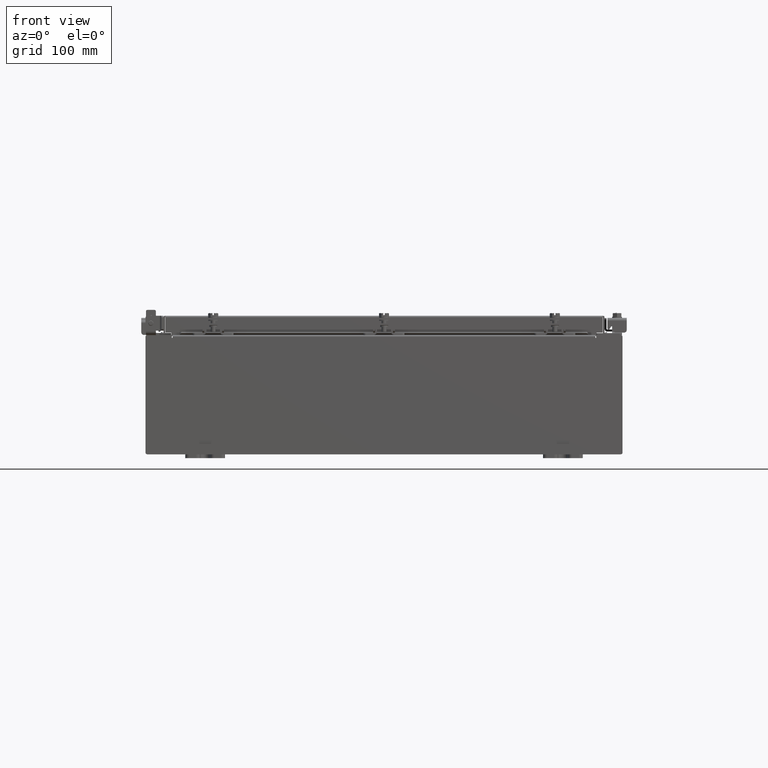
[diagram: clean part render]
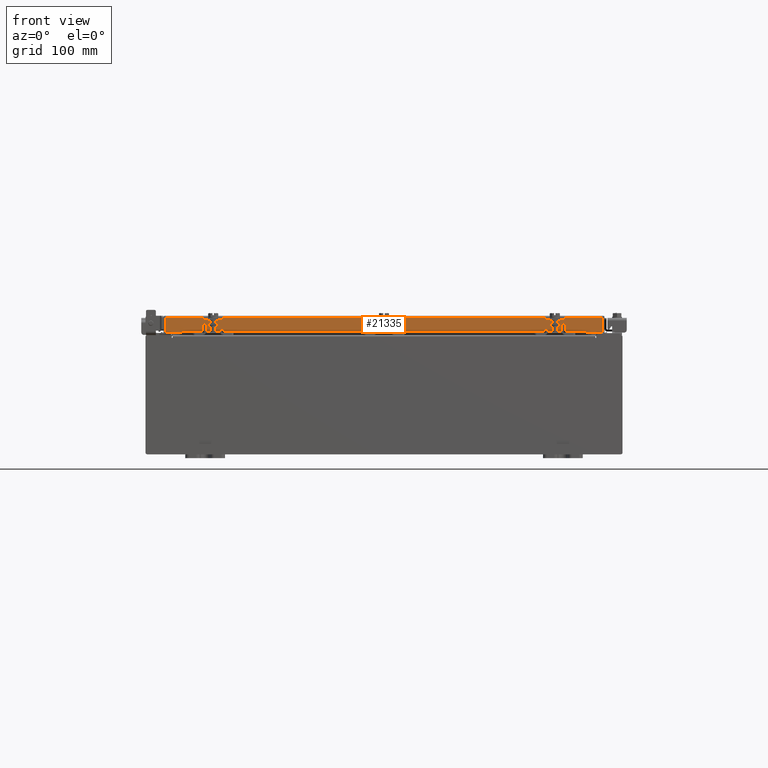
[diagram: same view with one face highlighted and labeled with its STEP entity id]
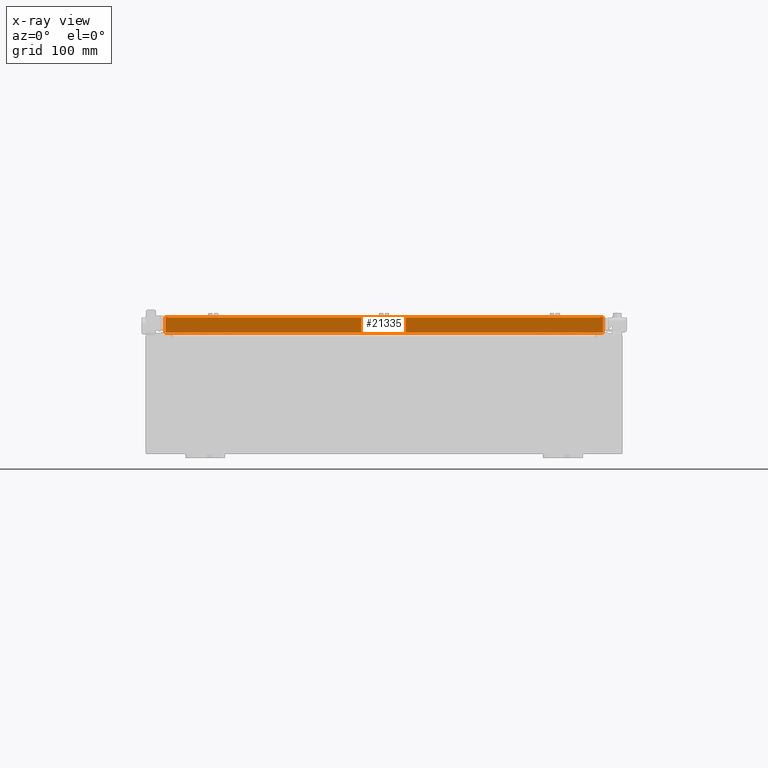
[diagram: x-ray of the same camera — body ghosted, the highlighted face saturated]
A machine part, front view. The second image highlights one B-rep face of the part: STEP entity #21335.
The next image is the same camera in x-ray: the body ghosted, the highlighted face saturated — about 0% of this face is hidden behind the body in this view.
In plain terms, the highlighted planar face has unit normal (-0, 1, -0).
Its self-contained STEP definition (entity closure, byte-faithful):
#287 = EDGE_LOOP ( 'NONE', ( #15582, #2360, #13617, #20908, #10682, #13291 ) ) ;
#482 = EDGE_CURVE ( 'NONE', #17370, #3004, #20799, .T. ) ;
#660 = DIRECTION ( 'NONE',  ( 0.0000000000000000000, -2.818880942772360100E-015, -1.000000000000000000 ) ) ;
#688 = EDGE_CURVE ( 'NONE', #2400, #17370, #15351, .T. ) ;
#952 = FACE_OUTER_BOUND ( 'NONE', #287, .T. ) ;
#1618 = LINE ( 'NONE', #17030, #2160 ) ;
#1976 = VECTOR ( 'NONE', #11158, 39.37007874015748100 ) ;
#2160 = VECTOR ( 'NONE', #6588, 39.37007874015748100 ) ;
#2360 = ORIENTED_EDGE ( 'NONE', *, *, #14827, .T. ) ;
#2400 = VERTEX_POINT ( 'NONE', #7180 ) ;
#3004 = VERTEX_POINT ( 'NONE', #16664 ) ;
#3189 = DIRECTION ( 'NONE',  ( -3.470684265319587400E-031, 1.000000000000000000, -2.818880942772360100E-015 ) ) ;
#3668 = LINE ( 'NONE', #16390, #7729 ) ;
#4553 = CARTESIAN_POINT ( 'NONE',  ( 11.09399999999999200, -11.09400000000000300, -0.8499999999999999800 ) ) ;
#5743 = VERTEX_POINT ( 'NONE', #10407 ) ;
#6379 = DIRECTION ( 'NONE',  ( -1.000000000000000000, 0.0000000000000000000, 0.0000000000000000000 ) ) ;
#6588 = DIRECTION ( 'NONE',  ( 1.000000000000000000, 3.470684265319588300E-031, -9.460278716967662300E-046 ) ) ;
#6670 = AXIS2_PLACEMENT_3D ( 'NONE', #11836, #3189, #15393 ) ;
#7180 = CARTESIAN_POINT ( 'NONE',  ( 11.00515786437626200, -11.09400000000000300, -0.8499999999999999800 ) ) ;
#7203 = VECTOR ( 'NONE', #15279, 39.37007874015748100 ) ;
#7729 = VECTOR ( 'NONE', #660, 39.37007874015748100 ) ;
#7785 = CARTESIAN_POINT ( 'NONE',  ( 11.09399999999999200, -11.09400000000000300, -0.8499999999999999800 ) ) ;
#8105 = EDGE_CURVE ( 'NONE', #19169, #5743, #1618, .T. ) ;
#8334 = CARTESIAN_POINT ( 'NONE',  ( 11.00515786437626200, -11.09400000000000100, -0.07470000000000015500 ) ) ;
#10176 = PLANE ( 'NONE',  #6670 ) ;
#10292 = EDGE_CURVE ( 'NONE', #3004, #17949, #19883, .T. ) ;
#10407 = CARTESIAN_POINT ( 'NONE',  ( 11.00515786437626200, -11.09400000000000100, -0.08770000000000026400 ) ) ;
#10682 = ORIENTED_EDGE ( 'NONE', *, *, #688, .F. ) ;
#11026 = CARTESIAN_POINT ( 'NONE',  ( 10.25515786437626000, -11.09400000000000100, -0.8500000000000020900 ) ) ;
#11089 = CARTESIAN_POINT ( 'NONE',  ( 10.25515786437626000, -11.09400000000000100, -0.8500000000000020900 ) ) ;
#11158 = DIRECTION ( 'NONE',  ( -1.000000000000000000, 4.379057701015054300E-047, 1.231227687788112800E-016 ) ) ;
#11836 = CARTESIAN_POINT ( 'NONE',  ( 0.0000000000000000000, -11.09400000000000100, 3.168943672650545400E-014 ) ) ;
#12301 = CARTESIAN_POINT ( 'NONE',  ( -11.00515786437626900, -11.09400000000000100, -0.08770000000000026400 ) ) ;
#13291 = ORIENTED_EDGE ( 'NONE', *, *, #14400, .F. ) ;
#13617 = ORIENTED_EDGE ( 'NONE', *, *, #10292, .F. ) ;
#14305 = CARTESIAN_POINT ( 'NONE',  ( -11.00515786437626900, -11.09400000000000300, -0.8499999999999966500 ) ) ;
#14400 = EDGE_CURVE ( 'NONE', #5743, #2400, #21104, .T. ) ;
#14827 = EDGE_CURVE ( 'NONE', #19169, #17949, #3668, .T. ) ;
#15261 = VECTOR ( 'NONE', #16751, 39.37007874015748100 ) ;
#15279 = DIRECTION ( 'NONE',  ( -0.0000000000000000000, -2.818880942772360100E-015, -1.000000000000000000 ) ) ;
#15351 = LINE ( 'NONE', #7785, #1976 ) ;
#15393 = DIRECTION ( 'NONE',  ( 0.0000000000000000000, 2.818880942772360100E-015, 1.000000000000000000 ) ) ;
#15582 = ORIENTED_EDGE ( 'NONE', *, *, #8105, .F. ) ;
#16390 = CARTESIAN_POINT ( 'NONE',  ( -11.00515786437627100, -11.09400000000000100, 3.168943672650545400E-014 ) ) ;
#16664 = CARTESIAN_POINT ( 'NONE',  ( -10.25515786437626900, -11.09400000000000100, -0.8500000000000020900 ) ) ;
#16751 = DIRECTION ( 'NONE',  ( -1.000000000000000000, 4.379057701015054300E-047, 1.231227687788112800E-016 ) ) ;
#17030 = CARTESIAN_POINT ( 'NONE',  ( 11.09399999999999200, -11.09400000000000100, -0.08770000000000026400 ) ) ;
#17370 = VERTEX_POINT ( 'NONE', #11089 ) ;
#17949 = VERTEX_POINT ( 'NONE', #14305 ) ;
#19169 = VERTEX_POINT ( 'NONE', #12301 ) ;
#19883 = LINE ( 'NONE', #4553, #15261 ) ;
#20247 = VECTOR ( 'NONE', #6379, 39.37007874015748100 ) ;
#20799 = LINE ( 'NONE', #11026, #20247 ) ;
#20908 = ORIENTED_EDGE ( 'NONE', *, *, #482, .F. ) ;
#21104 = LINE ( 'NONE', #8334, #7203 ) ;
#21335 = ADVANCED_FACE ( 'NONE', ( #952 ), #10176, .F. ) ;